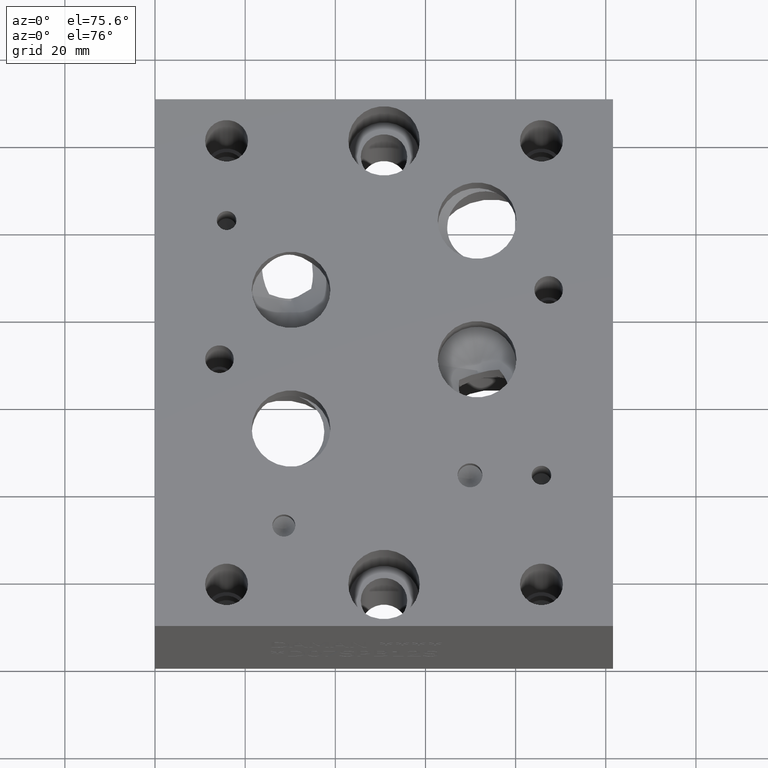
[diagram: clean part render]
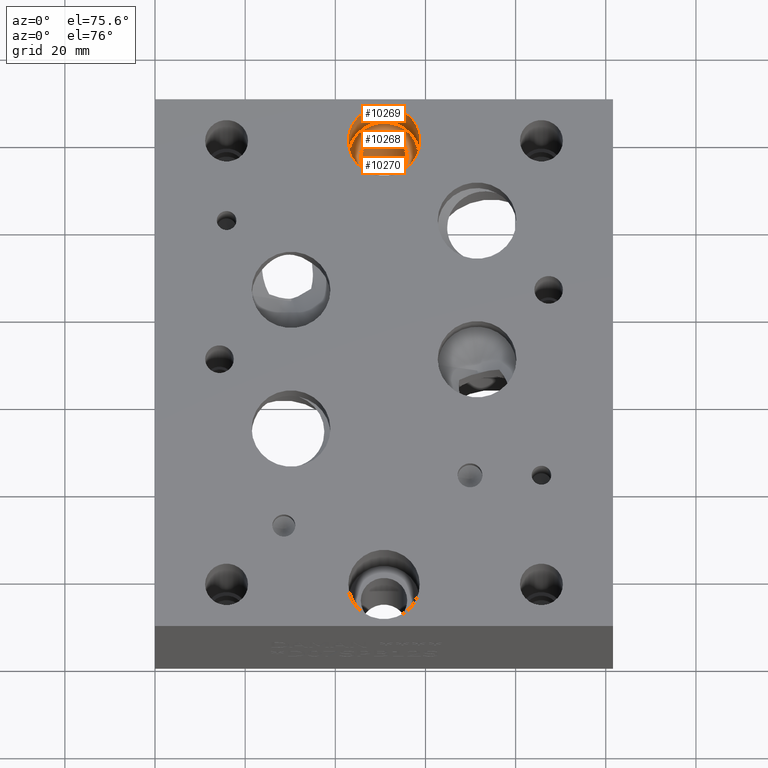
[diagram: same view with one multi-face feature highlighted, each face labeled with its STEP entity id]
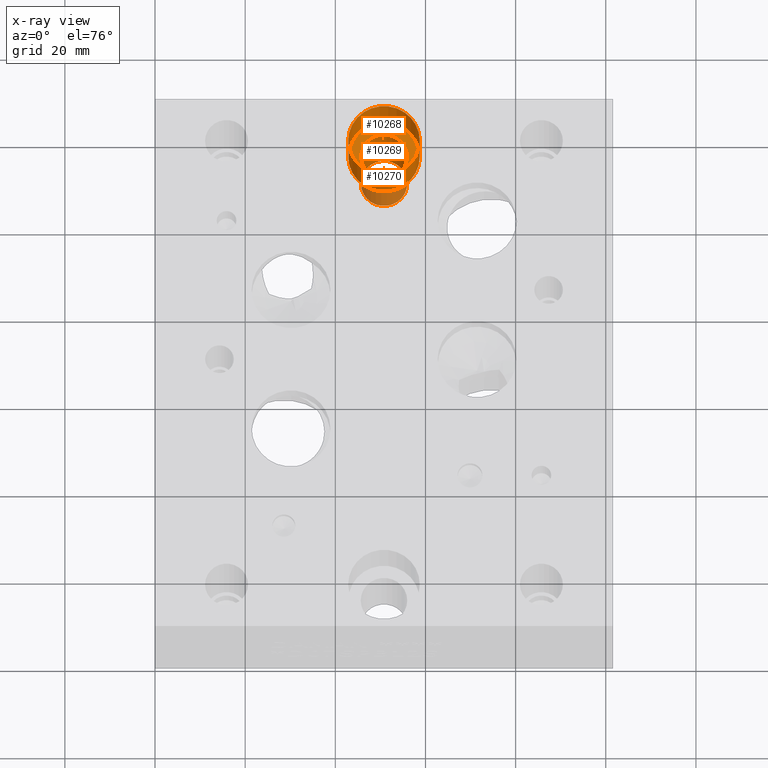
[diagram: x-ray of the same camera — body ghosted, the whole feature saturated]
A machine part, auxiliary view. The highlighted faces form ONE feature: a stepped (counterbored) hole: 2 coaxial cylindrical walls of radii 5.1562 -> 7.9375 mm joined by 1 annular planar shoulder face(s). The faces share edges in the B-rep.
The next image is the same camera in x-ray: the body ghosted and the whole hole feature saturated, so the bore chain is visible through the body.
Their STEP definitions:
[1] entity #10269 (Cylinder):
#104=CYLINDRICAL_SURFACE('',#10879,7.9375);
#408=CIRCLE('',#10876,7.9375);
#409=CIRCLE('',#10877,7.9375);
#411=CIRCLE('',#10880,7.9375);
#412=CIRCLE('',#10881,7.9375);
#1255=FACE_OUTER_BOUND('',#1841,.T.);
#1841=EDGE_LOOP('',(#8981,#8982,#8983,#8984,#8985,#8986));
#2837=LINE('',#17642,#3817);
#3817=VECTOR('',#13047,7.9375);
#4781=VERTEX_POINT('',#17631);
#4782=VERTEX_POINT('',#17632);
#4784=VERTEX_POINT('',#17638);
#4785=VERTEX_POINT('',#17639);
#6194=EDGE_CURVE('',#4781,#4782,#408,.T.);
#6195=EDGE_CURVE('',#4782,#4781,#409,.T.);
#6197=EDGE_CURVE('',#4784,#4785,#411,.T.);
#6198=EDGE_CURVE('',#4785,#4784,#412,.T.);
#6199=EDGE_CURVE('',#4785,#4782,#2837,.T.);
#8981=ORIENTED_EDGE('',*,*,#6197,.F.);
#8982=ORIENTED_EDGE('',*,*,#6198,.F.);
#8983=ORIENTED_EDGE('',*,*,#6199,.T.);
#8984=ORIENTED_EDGE('',*,*,#6194,.F.);
#8985=ORIENTED_EDGE('',*,*,#6195,.F.);
#8986=ORIENTED_EDGE('',*,*,#6199,.F.);
#10269=ADVANCED_FACE('',(#1255),#104,.F.);
#10876=AXIS2_PLACEMENT_3D('',#17633,#13035,#13036);
#10877=AXIS2_PLACEMENT_3D('',#17634,#13037,#13038);
#10879=AXIS2_PLACEMENT_3D('',#17637,#13041,#13042);
#10880=AXIS2_PLACEMENT_3D('',#17640,#13043,#13044);
#10881=AXIS2_PLACEMENT_3D('',#17641,#13045,#13046);
#13035=DIRECTION('center_axis',(0.,0.,1.));
#13036=DIRECTION('ref_axis',(1.,0.,0.));
#13037=DIRECTION('center_axis',(0.,0.,1.));
#13038=DIRECTION('ref_axis',(1.,0.,0.));
#13041=DIRECTION('center_axis',(0.,0.,1.));
#13042=DIRECTION('ref_axis',(1.,0.,0.));
#13043=DIRECTION('center_axis',(0.,0.,-1.));
#13044=DIRECTION('ref_axis',(1.,0.,0.));
#13045=DIRECTION('center_axis',(0.,0.,-1.));
#13046=DIRECTION('ref_axis',(1.,0.,0.));
#13047=DIRECTION('',(0.,0.,-1.));
#17631=CARTESIAN_POINT('',(58.7375,111.125,23.8252));
#17632=CARTESIAN_POINT('',(42.8625,111.125,23.8252));
#17633=CARTESIAN_POINT('Origin',(50.8,111.125,23.8252));
#17634=CARTESIAN_POINT('Origin',(50.8,111.125,23.8252));
#17637=CARTESIAN_POINT('Origin',(50.8,111.125,30.9626));
#17638=CARTESIAN_POINT('',(58.7375,111.125,38.1));
#17639=CARTESIAN_POINT('',(42.8625,111.125,38.1));
#17640=CARTESIAN_POINT('Origin',(50.8,111.125,38.1));
#17641=CARTESIAN_POINT('Origin',(50.8,111.125,38.1));
#17642=CARTESIAN_POINT('',(42.8625,111.125,30.9626));
[2] entity #10270 (Cylinder):
#105=CYLINDRICAL_SURFACE('',#10882,5.1562);
#228=CIRCLE('',#10318,5.1562);
#410=CIRCLE('',#10878,5.1562);
#1256=FACE_OUTER_BOUND('',#1842,.T.);
#1842=EDGE_LOOP('',(#8987,#8988,#8989,#8990));
#2838=LINE('',#17644,#3818);
#3818=VECTOR('',#13050,5.1562);
#3912=VERTEX_POINT('',#13314);
#4783=VERTEX_POINT('',#17635);
#4895=EDGE_CURVE('',#3912,#3912,#228,.T.);
#6196=EDGE_CURVE('',#4783,#4783,#410,.T.);
#6200=EDGE_CURVE('',#4783,#3912,#2838,.T.);
#8987=ORIENTED_EDGE('',*,*,#6196,.T.);
#8988=ORIENTED_EDGE('',*,*,#6200,.T.);
#8989=ORIENTED_EDGE('',*,*,#4895,.F.);
#8990=ORIENTED_EDGE('',*,*,#6200,.F.);
#10270=ADVANCED_FACE('',(#1256),#105,.F.);
#10318=AXIS2_PLACEMENT_3D('',#13315,#11037,#11038);
#10878=AXIS2_PLACEMENT_3D('',#17636,#13039,#13040);
#10882=AXIS2_PLACEMENT_3D('',#17643,#13048,#13049);
#11037=DIRECTION('center_axis',(0.,0.,1.));
#11038=DIRECTION('ref_axis',(1.,0.,0.));
#13039=DIRECTION('center_axis',(0.,0.,1.));
#13040=DIRECTION('ref_axis',(1.,0.,0.));
#13048=DIRECTION('center_axis',(0.,0.,1.));
#13049=DIRECTION('ref_axis',(1.,0.,0.));
#13050=DIRECTION('',(0.,0.,-1.));
#13314=CARTESIAN_POINT('',(45.6438,111.125,0.));
#13315=CARTESIAN_POINT('Origin',(50.8,111.125,0.));
#17635=CARTESIAN_POINT('',(45.6438,111.125,23.8252));
#17636=CARTESIAN_POINT('Origin',(50.8,111.125,23.8252));
#17643=CARTESIAN_POINT('Origin',(50.8,111.125,-124.167040707594));
#17644=CARTESIAN_POINT('',(45.6438,111.125,-124.167040707594));
[3] entity #10268 (Plane):
#408=CIRCLE('',#10876,7.9375);
#409=CIRCLE('',#10877,7.9375);
#410=CIRCLE('',#10878,5.1562);
#722=FACE_BOUND('',#1840,.T.);
#1254=FACE_OUTER_BOUND('',#1839,.T.);
#1839=EDGE_LOOP('',(#8978,#8979));
#1840=EDGE_LOOP('',(#8980));
#4781=VERTEX_POINT('',#17631);
#4782=VERTEX_POINT('',#17632);
#4783=VERTEX_POINT('',#17635);
#6194=EDGE_CURVE('',#4781,#4782,#408,.T.);
#6195=EDGE_CURVE('',#4782,#4781,#409,.T.);
#6196=EDGE_CURVE('',#4783,#4783,#410,.T.);
#8978=ORIENTED_EDGE('',*,*,#6194,.T.);
#8979=ORIENTED_EDGE('',*,*,#6195,.T.);
#8980=ORIENTED_EDGE('',*,*,#6196,.F.);
#9351=PLANE('',#10875);
#10268=ADVANCED_FACE('',(#1254,#722),#9351,.T.);
#10875=AXIS2_PLACEMENT_3D('',#17630,#13033,#13034);
#10876=AXIS2_PLACEMENT_3D('',#17633,#13035,#13036);
#10877=AXIS2_PLACEMENT_3D('',#17634,#13037,#13038);
#10878=AXIS2_PLACEMENT_3D('',#17636,#13039,#13040);
#13033=DIRECTION('center_axis',(0.,0.,1.));
#13034=DIRECTION('ref_axis',(1.,0.,0.));
#13035=DIRECTION('center_axis',(0.,0.,1.));
#13036=DIRECTION('ref_axis',(1.,0.,0.));
#13037=DIRECTION('center_axis',(0.,0.,1.));
#13038=DIRECTION('ref_axis',(1.,0.,0.));
#13039=DIRECTION('center_axis',(0.,0.,1.));
#13040=DIRECTION('ref_axis',(1.,0.,0.));
#17630=CARTESIAN_POINT('Origin',(50.8,111.125,23.8252));
#17631=CARTESIAN_POINT('',(58.7375,111.125,23.8252));
#17632=CARTESIAN_POINT('',(42.8625,111.125,23.8252));
#17633=CARTESIAN_POINT('Origin',(50.8,111.125,23.8252));
#17634=CARTESIAN_POINT('Origin',(50.8,111.125,23.8252));
#17635=CARTESIAN_POINT('',(45.6438,111.125,23.8252));
#17636=CARTESIAN_POINT('Origin',(50.8,111.125,23.8252));